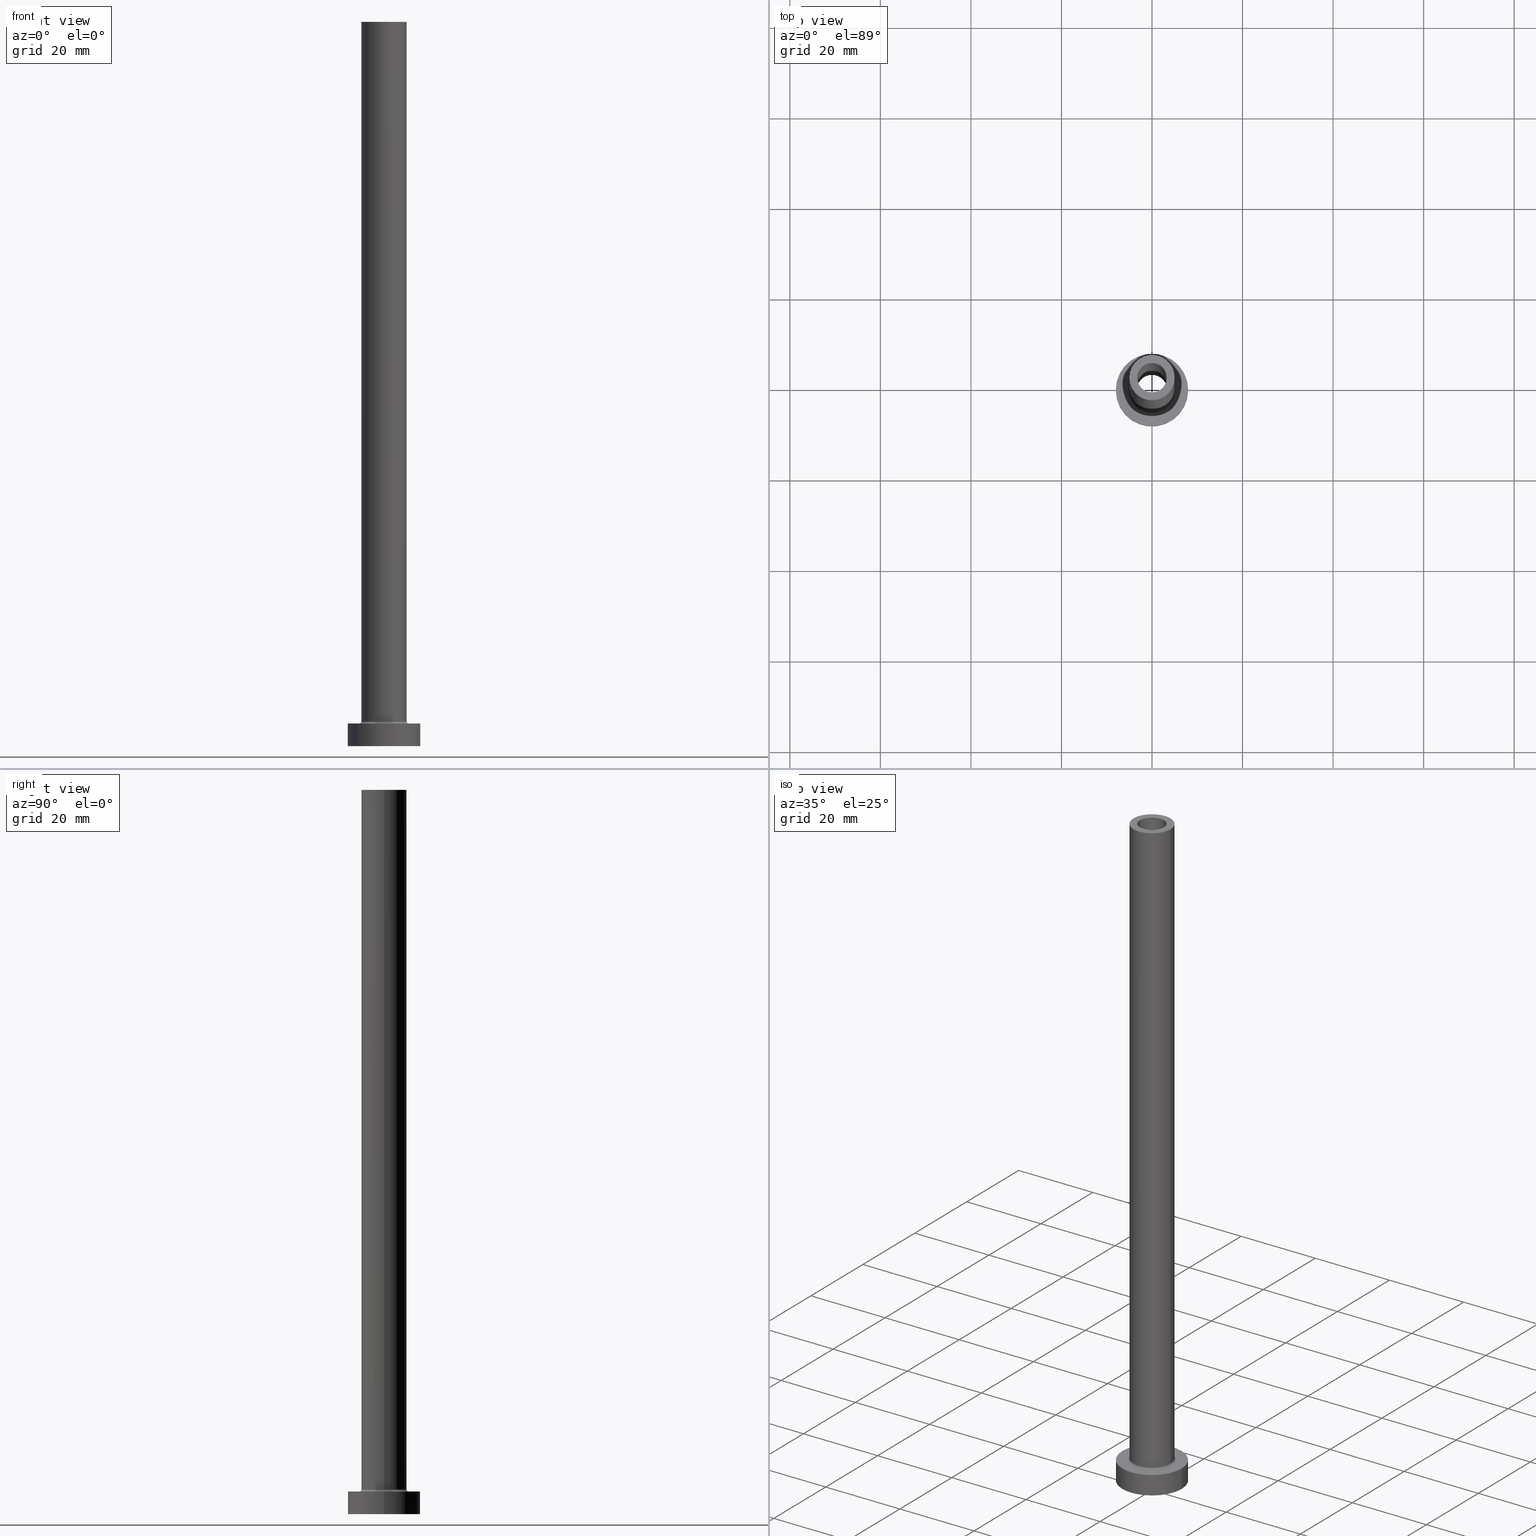
[diagram: canonical four-view strip — front | top / right | iso, engineering-drawing reading convention]
A machine part, canonical four-view strip (front | top / right | iso — engineering-drawing reading convention). The complete STEP part file that produces these views, byte-faithful:
ISO-10303-21;
HEADER;
FILE_DESCRIPTION (( 'STEP AP203' ),
    '1' );
FILE_NAME ('01ca.STEP',
    '2023-02-13T14:03:05',
    ( '' ),
    ( '' ),
    'SwSTEP 2.0',
    'SolidWorks 2019',
    '' );
FILE_SCHEMA (( 'CONFIG_CONTROL_DESIGN' ));
ENDSEC;

DATA;
#1 = DIRECTION ( 'NONE',  ( -1.000000000000000000, 1.224646799147351482E-16, 0.000000000000000000 ) ) ;
#2 = AXIS2_PLACEMENT_3D ( 'NONE', #395, #119, #159 ) ;
#3 = VERTEX_POINT ( 'NONE', #354 ) ;
#4 = AXIS2_PLACEMENT_3D ( 'NONE', #204, #128, #27 ) ;
#5 = DATE_AND_TIME ( #83, #34 ) ;
#6 = DIRECTION ( 'NONE',  ( 1.000000000000000000, 0.000000000000000000, 0.000000000000000000 ) ) ;
#7 = VERTEX_POINT ( 'NONE', #459 ) ;
#8 = APPLICATION_PROTOCOL_DEFINITION ( 'international standard', 'config_control_design', 1994, #90 ) ;
#9 = EDGE_CURVE ( 'NONE', #176, #288, #329, .T. ) ;
#10 = DIRECTION ( 'NONE',  ( 1.000000000000000000, 0.000000000000000000, 0.000000000000000000 ) ) ;
#11 = AXIS2_PLACEMENT_3D ( 'NONE', #433, #153, #290 ) ;
#12 = VERTEX_POINT ( 'NONE', #312 ) ;
#13 = TOROIDAL_SURFACE ( 'NONE', #274, 5.500000000000000000, 0.5000000000000000000 ) ;
#14 = LOCAL_TIME ( 15, 3, 5.000000000000000000, #440 ) ;
#15 = DIRECTION ( 'NONE',  ( -1.000000000000000000, 0.000000000000000000, 0.000000000000000000 ) ) ;
#16 = PERSON_AND_ORGANIZATION ( #158, #131 ) ;
#17 = CC_DESIGN_PERSON_AND_ORGANIZATION_ASSIGNMENT ( #16, #161, ( #214 ) ) ;
#18 = ADVANCED_FACE ( 'NONE', ( #457 ), #276, .T. ) ;
#19 = DIRECTION ( 'NONE',  ( -1.000000000000000000, 0.000000000000000000, 0.000000000000000000 ) ) ;
#20 = ORIENTED_EDGE ( 'NONE', *, *, #97, .T. ) ;
#21 = FACE_OUTER_BOUND ( 'NONE', #318, .T. ) ;
#22 = EDGE_LOOP ( 'NONE', ( #237, #115, #198, #172 ) ) ;
#23 = DIRECTION ( 'NONE',  ( 1.000000000000000000, 0.000000000000000000, 0.000000000000000000 ) ) ;
#24 = AXIS2_PLACEMENT_3D ( 'NONE', #68, #437, #23 ) ;
#25 = ORIENTED_EDGE ( 'NONE', *, *, #136, .T. ) ;
#26 = PRODUCT_DEFINITION ( 'NEZN�M�', '', #399, #242 ) ;
#27 = DIRECTION ( 'NONE',  ( 1.000000000000000000, 0.000000000000000000, 0.000000000000000000 ) ) ;
#28 = ORIENTED_EDGE ( 'NONE', *, *, #401, .T. ) ;
#29 = EDGE_LOOP ( 'NONE', ( #178, #28 ) ) ;
#30 = VECTOR ( 'NONE', #336, 1000.000000000000000 ) ;
#31 = DIRECTION ( 'NONE',  ( 0.000000000000000000, 0.000000000000000000, -1.000000000000000000 ) ) ;
#32 = ORIENTED_EDGE ( 'NONE', *, *, #309, .T. ) ;
#33 = CIRCLE ( 'NONE', #283, 5.500000000000000000 ) ;
#34 = LOCAL_TIME ( 15, 3, 5.000000000000000000, #388 ) ;
#35 = DIRECTION ( 'NONE',  ( 1.000000000000000000, 0.000000000000000000, 0.000000000000000000 ) ) ;
#36 = ORIENTED_EDGE ( 'NONE', *, *, #9, .T. ) ;
#37 = LINE ( 'NONE', #141, #155 ) ;
#38 = EDGE_CURVE ( 'NONE', #428, #327, #366, .T. ) ;
#39 = DIRECTION ( 'NONE',  ( 0.000000000000000000, 0.000000000000000000, -1.000000000000000000 ) ) ;
#40 = CC_DESIGN_PERSON_AND_ORGANIZATION_ASSIGNMENT ( #122, #88, ( #26 ) ) ;
#41 = ADVANCED_FACE ( 'NONE', ( #117 ), #362, .T. ) ;
#42 = CIRCLE ( 'NONE', #85, 3.399999999999999911 ) ;
#43 = DIRECTION ( 'NONE',  ( 1.224646799147353207E-16, 1.000000000000000000, -0.000000000000000000 ) ) ;
#44 = EDGE_CURVE ( 'NONE', #3, #243, #224, .T. ) ;
#45 = DIRECTION ( 'NONE',  ( 0.000000000000000000, 0.000000000000000000, 1.000000000000000000 ) ) ;
#46 = ORIENTED_EDGE ( 'NONE', *, *, #72, .F. ) ;
#47 = CARTESIAN_POINT ( 'NONE',  ( 0.000000000000000000, 0.000000000000000000, 115.0000000000000000 ) ) ;
#48 = VECTOR ( 'NONE', #350, 1000.000000000000000 ) ;
#49 = CYLINDRICAL_SURFACE ( 'NONE', #235, 8.000000000000000000 ) ;
#50 = DIRECTION ( 'NONE',  ( 1.000000000000000000, 0.000000000000000000, 0.000000000000000000 ) ) ;
#51 = ORIENTED_EDGE ( 'NONE', *, *, #387, .F. ) ;
#52 = CARTESIAN_POINT ( 'NONE',  ( 5.000000000000000000, 6.123233995736766282E-16, 160.0000000000000000 ) ) ;
#53 = EDGE_LOOP ( 'NONE', ( #223, #87, #453, #376 ) ) ;
#54 = CALENDAR_DATE ( 2023, 13, 2 ) ;
#55 = DIRECTION ( 'NONE',  ( -1.000000000000000000, 0.000000000000000000, 0.000000000000000000 ) ) ;
#56 = VERTEX_POINT ( 'NONE', #222 ) ;
#57 = CC_DESIGN_PERSON_AND_ORGANIZATION_ASSIGNMENT ( #297, #447, ( #399 ) ) ;
#58 =( GEOMETRIC_REPRESENTATION_CONTEXT ( 3 ) GLOBAL_UNCERTAINTY_ASSIGNED_CONTEXT ( ( #420 ) ) GLOBAL_UNIT_ASSIGNED_CONTEXT ( ( #282, #429, #191 ) ) REPRESENTATION_CONTEXT ( 'NONE', 'WORKASPACE' ) );
#59 = CALENDAR_DATE ( 2023, 13, 2 ) ;
#60 = DIRECTION ( 'NONE',  ( 0.000000000000000000, 0.000000000000000000, -1.000000000000000000 ) ) ;
#61 = CARTESIAN_POINT ( 'NONE',  ( 0.000000000000000000, 0.000000000000000000, 5.000000000000000000 ) ) ;
#62 = PERSON_AND_ORGANIZATION ( #158, #131 ) ;
#63 = CYLINDRICAL_SURFACE ( 'NONE', #307, 3.399999999999999911 ) ;
#64 = DIRECTION ( 'NONE',  ( 1.000000000000000000, 0.000000000000000000, -0.000000000000000000 ) ) ;
#65 = VECTOR ( 'NONE', #221, 1000.000000000000000 ) ;
#66 = ORIENTED_EDGE ( 'NONE', *, *, #280, .F. ) ;
#67 = APPROVAL_DATE_TIME ( #5, #194 ) ;
#68 = CARTESIAN_POINT ( 'NONE',  ( 0.000000000000000000, 0.000000000000000000, 5.500000000000005329 ) ) ;
#69 = ORIENTED_EDGE ( 'NONE', *, *, #292, .F. ) ;
#70 = CARTESIAN_POINT ( 'NONE',  ( -3.250000000000000444, 0.000000000000000000, 160.0000000000000000 ) ) ;
#71 = CIRCLE ( 'NONE', #4, 3.399999999999999911 ) ;
#72 = EDGE_CURVE ( 'NONE', #7, #56, #333, .T. ) ;
#73 = EDGE_LOOP ( 'NONE', ( #337, #246, #163, #400 ) ) ;
#74 = CYLINDRICAL_SURFACE ( 'NONE', #108, 3.399999999999999911 ) ;
#75 = EDGE_CURVE ( 'NONE', #371, #348, #346, .T. ) ;
#76 = ORIENTED_EDGE ( 'NONE', *, *, #103, .F. ) ;
#77 = AXIS2_PLACEMENT_3D ( 'NONE', #192, #252, #389 ) ;
#78 = DIRECTION ( 'NONE',  ( 0.000000000000000000, 0.000000000000000000, 1.000000000000000000 ) ) ;
#79 = ORIENTED_EDGE ( 'NONE', *, *, #251, .F. ) ;
#80 = AXIS2_PLACEMENT_3D ( 'NONE', #328, #45, #91 ) ;
#81 = CARTESIAN_POINT ( 'NONE',  ( -5.000000000000000000, 0.000000000000000000, 160.0000000000000000 ) ) ;
#82 = ORIENTED_EDGE ( 'NONE', *, *, #292, .T. ) ;
#83 = CALENDAR_DATE ( 2023, 13, 2 ) ;
#84 = DIRECTION ( 'NONE',  ( 0.000000000000000000, 0.000000000000000000, 1.000000000000000000 ) ) ;
#85 = AXIS2_PLACEMENT_3D ( 'NONE', #441, #99, #445 ) ;
#86 = DIRECTION ( 'NONE',  ( -1.000000000000000000, 0.000000000000000000, 0.000000000000000000 ) ) ;
#87 = ORIENTED_EDGE ( 'NONE', *, *, #277, .F. ) ;
#88 = PERSON_AND_ORGANIZATION_ROLE ( 'creator' ) ;
#89 = ORIENTED_EDGE ( 'NONE', *, *, #215, .F. ) ;
#90 = APPLICATION_CONTEXT ( 'configuration controlled 3d designs of mechanical parts and assemblies' ) ;
#91 = DIRECTION ( 'NONE',  ( 1.000000000000000000, 0.000000000000000000, 0.000000000000000000 ) ) ;
#92 = CARTESIAN_POINT ( 'NONE',  ( 0.000000000000000000, 0.000000000000000000, 160.0000000000000000 ) ) ;
#93 = VECTOR ( 'NONE', #31, 1000.000000000000000 ) ;
#94 = EDGE_LOOP ( 'NONE', ( #208, #36 ) ) ;
#95 = DATE_AND_TIME ( #59, #156 ) ;
#96 = PLANE ( 'NONE',  #323 ) ;
#97 = EDGE_CURVE ( 'NONE', #320, #357, #450, .T. ) ;
#98 = CARTESIAN_POINT ( 'NONE',  ( 5.000000000000000000, 6.123233995736766282E-16, 5.500000000000005329 ) ) ;
#99 = DIRECTION ( 'NONE',  ( 0.000000000000000000, 0.000000000000000000, 1.000000000000000000 ) ) ;
#100 = CC_DESIGN_APPROVAL ( #308, ( #214 ) ) ;
#101 = ORIENTED_EDGE ( 'NONE', *, *, #233, .T. ) ;
#102 = CC_DESIGN_PERSON_AND_ORGANIZATION_ASSIGNMENT ( #165, #335, ( #399 ) ) ;
#103 = EDGE_CURVE ( 'NONE', #327, #428, #261, .T. ) ;
#104 = DIRECTION ( 'NONE',  ( 1.000000000000000000, 0.000000000000000000, 0.000000000000000000 ) ) ;
#105 = ORIENTED_EDGE ( 'NONE', *, *, #218, .T. ) ;
#106 = DIRECTION ( 'NONE',  ( 0.000000000000000000, 0.000000000000000000, 1.000000000000000000 ) ) ;
#107 = ORIENTED_EDGE ( 'NONE', *, *, #345, .F. ) ;
#108 = AXIS2_PLACEMENT_3D ( 'NONE', #173, #135, #272 ) ;
#109 = EDGE_CURVE ( 'NONE', #7, #12, #438, .T. ) ;
#110 = CARTESIAN_POINT ( 'NONE',  ( 0.000000000000000000, 0.000000000000000000, 0.000000000000000000 ) ) ;
#111 = ADVANCED_FACE ( 'NONE', ( #435 ), #190, .F. ) ;
#112 = CARTESIAN_POINT ( 'NONE',  ( 0.000000000000000000, 0.000000000000000000, 160.0000000000000000 ) ) ;
#113 = APPLICATION_CONTEXT ( 'configuration controlled 3d designs of mechanical parts and assemblies' ) ;
#114 = PLANE ( 'NONE',  #120 ) ;
#115 = ORIENTED_EDGE ( 'NONE', *, *, #280, .T. ) ;
#116 = LOCAL_TIME ( 15, 3, 5.000000000000000000, #121 ) ;
#117 = FACE_OUTER_BOUND ( 'NONE', #53, .T. ) ;
#118 = DIRECTION ( 'NONE',  ( 0.000000000000000000, 0.000000000000000000, 1.000000000000000000 ) ) ;
#119 = DIRECTION ( 'NONE',  ( -0.000000000000000000, -0.000000000000000000, -1.000000000000000000 ) ) ;
#120 = AXIS2_PLACEMENT_3D ( 'NONE', #171, #106, #247 ) ;
#121 = COORDINATED_UNIVERSAL_TIME_OFFSET ( 1, 0, .AHEAD. ) ;
#122 = PERSON_AND_ORGANIZATION ( #158, #131 ) ;
#123 = MANIFOLD_SOLID_BREP ( 'Odebrat vysunut�m4', #338 ) ;
#124 = FACE_OUTER_BOUND ( 'NONE', #352, .T. ) ;
#125 = CIRCLE ( 'NONE', #361, 3.250000000000000444 ) ;
#126 = CALENDAR_DATE ( 2023, 13, 2 ) ;
#127 = DIRECTION ( 'NONE',  ( 1.000000000000000000, 0.000000000000000000, -0.000000000000000000 ) ) ;
#128 = DIRECTION ( 'NONE',  ( -0.000000000000000000, -0.000000000000000000, -1.000000000000000000 ) ) ;
#129 = CARTESIAN_POINT ( 'NONE',  ( 0.000000000000000000, 0.000000000000000000, 0.000000000000000000 ) ) ;
#130 = AXIS2_PLACEMENT_3D ( 'NONE', #254, #326, #258 ) ;
#131 = ORGANIZATION ( 'NEUR�EN�', 'NEUR�EN�', '' ) ;
#132 = ORIENTED_EDGE ( 'NONE', *, *, #345, .T. ) ;
#133 = CYLINDRICAL_SURFACE ( 'NONE', #300, 3.250000000000000444 ) ;
#134 = EDGE_LOOP ( 'NONE', ( #304, #51 ) ) ;
#135 = DIRECTION ( 'NONE',  ( 0.000000000000000000, 0.000000000000000000, -1.000000000000000000 ) ) ;
#136 = EDGE_CURVE ( 'NONE', #12, #7, #250, .T. ) ;
#137 = FACE_OUTER_BOUND ( 'NONE', #414, .T. ) ;
#138 = CARTESIAN_POINT ( 'NONE',  ( 0.000000000000000000, 0.000000000000000000, 160.0000000000000000 ) ) ;
#139 = VECTOR ( 'NONE', #315, 1000.000000000000000 ) ;
#140 = CC_DESIGN_SECURITY_CLASSIFICATION ( #214, ( #399 ) ) ;
#141 = CARTESIAN_POINT ( 'NONE',  ( 8.000000000000000000, 9.797174393178825657E-16, 5.000000000000000000 ) ) ;
#142 = CARTESIAN_POINT ( 'NONE',  ( -3.250000000000000444, 0.000000000000000000, 115.0000000000000000 ) ) ;
#143 = ORIENTED_EDGE ( 'NONE', *, *, #401, .F. ) ;
#144 = CARTESIAN_POINT ( 'NONE',  ( 3.250000000000000444, 3.980102097228897245E-16, 115.0000000000000000 ) ) ;
#145 = ORIENTED_EDGE ( 'NONE', *, *, #109, .T. ) ;
#146 = LOCAL_TIME ( 15, 3, 5.000000000000000000, #364 ) ;
#147 = ORIENTED_EDGE ( 'NONE', *, *, #136, .F. ) ;
#148 = EDGE_LOOP ( 'NONE', ( #160, #101, #76, #201 ) ) ;
#149 = PRODUCT_RELATED_PRODUCT_CATEGORY ( 'detail', '', ( #279 ) ) ;
#150 = EDGE_CURVE ( 'NONE', #3, #320, #301, .T. ) ;
#151 = AXIS2_PLACEMENT_3D ( 'NONE', #138, #378, #174 ) ;
#152 = PERSON_AND_ORGANIZATION_ROLE ( 'design_owner' ) ;
#153 = DIRECTION ( 'NONE',  ( 0.000000000000000000, 0.000000000000000000, 1.000000000000000000 ) ) ;
#154 = ORIENTED_EDGE ( 'NONE', *, *, #183, .T. ) ;
#155 = VECTOR ( 'NONE', #207, 1000.000000000000000 ) ;
#156 = LOCAL_TIME ( 15, 3, 5.000000000000000000, #268 ) ;
#157 = DATE_AND_TIME ( #54, #146 ) ;
#158 = PERSON ( 'NEUR�EN�', 'NEUR�EN�', 'NEUR�EN�', ('NEUR�EN�'), ('NEUR�EN�'), ('NEUR�EN�') ) ;
#159 = DIRECTION ( 'NONE',  ( 1.000000000000000000, 0.000000000000000000, 0.000000000000000000 ) ) ;
#160 = ORIENTED_EDGE ( 'NONE', *, *, #251, .T. ) ;
#161 = PERSON_AND_ORGANIZATION_ROLE ( 'classification_officer' ) ;
#162 = LINE ( 'NONE', #347, #93 ) ;
#163 = ORIENTED_EDGE ( 'NONE', *, *, #75, .F. ) ;
#164 = AXIS2_PLACEMENT_3D ( 'NONE', #110, #249, #381 ) ;
#165 = PERSON_AND_ORGANIZATION ( #158, #131 ) ;
#166 = DIRECTION ( 'NONE',  ( -0.000000000000000000, -0.000000000000000000, -1.000000000000000000 ) ) ;
#167 = CARTESIAN_POINT ( 'NONE',  ( 0.000000000000000000, 0.000000000000000000, 160.0000000000000000 ) ) ;
#168 = ADVANCED_FACE ( 'NONE', ( #370 ), #63, .F. ) ;
#169 = FACE_BOUND ( 'NONE', #29, .T. ) ;
#170 = VERTEX_POINT ( 'NONE', #98 ) ;
#171 = CARTESIAN_POINT ( 'NONE',  ( 0.000000000000000000, 0.000000000000000000, 0.000000000000000000 ) ) ;
#172 = ORIENTED_EDGE ( 'NONE', *, *, #38, .F. ) ;
#173 = CARTESIAN_POINT ( 'NONE',  ( 0.000000000000000000, 0.000000000000000000, 124.6166522241370558 ) ) ;
#174 = DIRECTION ( 'NONE',  ( 1.000000000000000000, 0.000000000000000000, 0.000000000000000000 ) ) ;
#175 = CARTESIAN_POINT ( 'NONE',  ( -5.000000000000000000, 0.000000000000000000, 5.500000000000005329 ) ) ;
#176 = VERTEX_POINT ( 'NONE', #269 ) ;
#177 = CARTESIAN_POINT ( 'NONE',  ( 5.500000000000000000, 0.000000000000000000, 5.500000000000005329 ) ) ;
#178 = ORIENTED_EDGE ( 'NONE', *, *, #75, .T. ) ;
#179 = AXIS2_PLACEMENT_3D ( 'NONE', #112, #270, #35 ) ;
#180 = CARTESIAN_POINT ( 'NONE',  ( -3.399999999999999911, 0.000000000000000000, 0.000000000000000000 ) ) ;
#181 = ORIENTED_EDGE ( 'NONE', *, *, #44, .T. ) ;
#182 = APPROVAL ( #253, 'NEUR�EN�' ) ;
#183 = EDGE_CURVE ( 'NONE', #170, #369, #220, .T. ) ;
#184 = DATE_AND_TIME ( #259, #116 ) ;
#185 = EDGE_LOOP ( 'NONE', ( #231, #284 ) ) ;
#186 = CARTESIAN_POINT ( 'NONE',  ( 0.000000000000000000, 0.000000000000000000, 5.000000000000000000 ) ) ;
#187 = CIRCLE ( 'NONE', #442, 0.5000000000000004441 ) ;
#188 = CARTESIAN_POINT ( 'NONE',  ( 0.000000000000000000, 0.000000000000000000, 5.500000000000005329 ) ) ;
#189 = ADVANCED_FACE ( 'NONE', ( #21 ), #266, .T. ) ;
#190 = CYLINDRICAL_SURFACE ( 'NONE', #267, 3.250000000000000444 ) ;
#191 =( NAMED_UNIT ( * ) SI_UNIT ( $, .STERADIAN. ) SOLID_ANGLE_UNIT ( ) );
#192 = CARTESIAN_POINT ( 'NONE',  ( 0.000000000000000000, 0.000000000000000000, 115.0000000000000000 ) ) ;
#193 = APPROVAL_PERSON_ORGANIZATION ( #425, #182, #432 ) ;
#194 = APPROVAL ( #319, 'NEUR�EN�' ) ;
#195 = DIRECTION ( 'NONE',  ( 0.000000000000000000, 0.000000000000000000, 1.000000000000000000 ) ) ;
#196 = ORIENTED_EDGE ( 'NONE', *, *, #9, .F. ) ;
#197 = DIRECTION ( 'NONE',  ( -1.000000000000000000, 0.000000000000000000, 0.000000000000000000 ) ) ;
#198 = ORIENTED_EDGE ( 'NONE', *, *, #410, .T. ) ;
#199 = CIRCLE ( 'NONE', #164, 8.000000000000000000 ) ;
#200 = CARTESIAN_POINT ( 'NONE',  ( 0.000000000000000000, 0.000000000000000000, 160.0000000000000000 ) ) ;
#201 = ORIENTED_EDGE ( 'NONE', *, *, #410, .F. ) ;
#202 = CC_DESIGN_DATE_AND_TIME_ASSIGNMENT ( #95, #294, ( #214 ) ) ;
#203 = SECURITY_CLASSIFICATION_LEVEL ( 'unclassified' ) ;
#204 = CARTESIAN_POINT ( 'NONE',  ( 0.000000000000000000, 0.000000000000000000, 0.000000000000000000 ) ) ;
#205 = AXIS2_PLACEMENT_3D ( 'NONE', #416, #78, #211 ) ;
#206 = FACE_OUTER_BOUND ( 'NONE', #73, .T. ) ;
#207 = DIRECTION ( 'NONE',  ( -0.000000000000000000, -0.000000000000000000, -1.000000000000000000 ) ) ;
#208 = ORIENTED_EDGE ( 'NONE', *, *, #277, .T. ) ;
#209 = CARTESIAN_POINT ( 'NONE',  ( 0.000000000000000000, 0.000000000000000000, 5.000000000000000000 ) ) ;
#210 = CARTESIAN_POINT ( 'NONE',  ( 0.000000000000000000, 0.000000000000000000, 5.000000000000000000 ) ) ;
#211 = DIRECTION ( 'NONE',  ( 1.000000000000000000, 0.000000000000000000, 0.000000000000000000 ) ) ;
#212 = PRODUCT_DEFINITION_SHAPE ( 'NONE', 'NONE',  #26 ) ;
#213 = EDGE_LOOP ( 'NONE', ( #107, #444, #296, #20 ) ) ;
#214 = SECURITY_CLASSIFICATION ( '', '', #203 ) ;
#215 = EDGE_CURVE ( 'NONE', #243, #3, #42, .T. ) ;
#216 = LINE ( 'NONE', #458, #393 ) ;
#217 = APPROVAL_ROLE ( '' ) ;
#218 = EDGE_CURVE ( 'NONE', #357, #320, #71, .T. ) ;
#219 = DIRECTION ( 'NONE',  ( 0.000000000000000000, 0.000000000000000000, 1.000000000000000000 ) ) ;
#220 = CIRCLE ( 'NONE', #24, 5.000000000000000000 ) ;
#221 = DIRECTION ( 'NONE',  ( -0.000000000000000000, -0.000000000000000000, -1.000000000000000000 ) ) ;
#222 = CARTESIAN_POINT ( 'NONE',  ( -8.000000000000000000, 0.000000000000000000, 0.000000000000000000 ) ) ;
#223 = ORIENTED_EDGE ( 'NONE', *, *, #446, .F. ) ;
#224 = CIRCLE ( 'NONE', #77, 3.399999999999999911 ) ;
#225 = DIRECTION ( 'NONE',  ( 1.000000000000000000, 0.000000000000000000, 0.000000000000000000 ) ) ;
#226 = DIRECTION ( 'NONE',  ( 1.000000000000000000, 0.000000000000000000, 0.000000000000000000 ) ) ;
#227 = AXIS2_PLACEMENT_3D ( 'NONE', #186, #324, #6 ) ;
#228 = ADVANCED_FACE ( 'NONE', ( #169, #375 ), #236, .T. ) ;
#229 = SHAPE_DEFINITION_REPRESENTATION ( #212, #398 ) ;
#230 = DIRECTION ( 'NONE',  ( -1.000000000000000000, 0.000000000000000000, 0.000000000000000000 ) ) ;
#231 = ORIENTED_EDGE ( 'NONE', *, *, #103, .T. ) ;
#232 = DIRECTION ( 'NONE',  ( 0.000000000000000000, 0.000000000000000000, -1.000000000000000000 ) ) ;
#233 = EDGE_CURVE ( 'NONE', #436, #428, #162, .T. ) ;
#234 = DIRECTION ( 'NONE',  ( 0.000000000000000000, 0.000000000000000000, 1.000000000000000000 ) ) ;
#235 = AXIS2_PLACEMENT_3D ( 'NONE', #286, #426, #86 ) ;
#236 = PLANE ( 'NONE',  #355 ) ;
#237 = ORIENTED_EDGE ( 'NONE', *, *, #233, .F. ) ;
#238 = DIRECTION ( 'NONE',  ( 0.000000000000000000, 0.000000000000000000, 1.000000000000000000 ) ) ;
#239 = AXIS2_PLACEMENT_3D ( 'NONE', #293, #219, #50 ) ;
#240 = VERTEX_POINT ( 'NONE', #404 ) ;
#241 = CARTESIAN_POINT ( 'NONE',  ( 5.500000000000000000, 0.000000000000000000, 5.000000000000002665 ) ) ;
#242 = DESIGN_CONTEXT ( 'detailed design', #113, 'design' ) ;
#243 = VERTEX_POINT ( 'NONE', #374 ) ;
#244 = ADVANCED_FACE ( 'NONE', ( #295, #124 ), #262, .F. ) ;
#245 = CARTESIAN_POINT ( 'NONE',  ( -5.500000000000000000, 6.735557395310442023E-16, 5.000000000000002665 ) ) ;
#246 = ORIENTED_EDGE ( 'NONE', *, *, #314, .T. ) ;
#247 = DIRECTION ( 'NONE',  ( 1.000000000000000000, 0.000000000000000000, -0.000000000000000000 ) ) ;
#248 = ADVANCED_FACE ( 'NONE', ( #265, #402 ), #96, .T. ) ;
#249 = DIRECTION ( 'NONE',  ( 0.000000000000000000, 0.000000000000000000, 1.000000000000000000 ) ) ;
#250 = CIRCLE ( 'NONE', #227, 8.000000000000000000 ) ;
#251 = EDGE_CURVE ( 'NONE', #359, #436, #125, .T. ) ;
#252 = DIRECTION ( 'NONE',  ( 0.000000000000000000, 0.000000000000000000, 1.000000000000000000 ) ) ;
#253 = APPROVAL_STATUS ( 'not_yet_approved' ) ;
#254 = CARTESIAN_POINT ( 'NONE',  ( 0.000000000000000000, 0.000000000000000000, 5.000000000000000000 ) ) ;
#255 = AXIS2_PLACEMENT_3D ( 'NONE', #298, #166, #230 ) ;
#256 = EDGE_CURVE ( 'NONE', #56, #240, #379, .T. ) ;
#257 = APPROVAL_DATE_TIME ( #184, #182 ) ;
#258 = DIRECTION ( 'NONE',  ( 1.000000000000000000, 0.000000000000000000, 0.000000000000000000 ) ) ;
#259 = CALENDAR_DATE ( 2023, 13, 2 ) ;
#260 = ORIENTED_EDGE ( 'NONE', *, *, #44, .F. ) ;
#261 = CIRCLE ( 'NONE', #321, 3.250000000000000444 ) ;
#262 = PLANE ( 'NONE',  #368 ) ;
#263 = ORIENTED_EDGE ( 'NONE', *, *, #109, .F. ) ;
#264 = DATE_AND_TIME ( #126, #14 ) ;
#265 = FACE_BOUND ( 'NONE', #394, .T. ) ;
#266 = CYLINDRICAL_SURFACE ( 'NONE', #255, 5.000000000000000000 ) ;
#267 = AXIS2_PLACEMENT_3D ( 'NONE', #92, #60, #19 ) ;
#268 = COORDINATED_UNIVERSAL_TIME_OFFSET ( 1, 0, .AHEAD. ) ;
#269 = CARTESIAN_POINT ( 'NONE',  ( 5.000000000000000000, 6.123233995736766282E-16, 160.0000000000000000 ) ) ;
#270 = DIRECTION ( 'NONE',  ( 0.000000000000000000, 0.000000000000000000, 1.000000000000000000 ) ) ;
#271 = ORIENTED_EDGE ( 'NONE', *, *, #256, .T. ) ;
#272 = DIRECTION ( 'NONE',  ( -1.000000000000000000, 0.000000000000000000, 0.000000000000000000 ) ) ;
#273 = ORIENTED_EDGE ( 'NONE', *, *, #183, .F. ) ;
#274 = AXIS2_PLACEMENT_3D ( 'NONE', #455, #317, #382 ) ;
#275 = CARTESIAN_POINT ( 'NONE',  ( 0.000000000000000000, 0.000000000000000000, 5.500000000000005329 ) ) ;
#276 = CYLINDRICAL_SURFACE ( 'NONE', #405, 8.000000000000000000 ) ;
#277 = EDGE_CURVE ( 'NONE', #288, #176, #349, .T. ) ;
#278 = FACE_BOUND ( 'NONE', #407, .T. ) ;
#279 = PRODUCT ( '01ca', '01ca', '', ( #287 ) ) ;
#280 = EDGE_CURVE ( 'NONE', #436, #359, #373, .T. ) ;
#281 = LINE ( 'NONE', #421, #139 ) ;
#282 =( LENGTH_UNIT ( ) NAMED_UNIT ( * ) SI_UNIT ( .MILLI., .METRE. ) );
#283 = AXIS2_PLACEMENT_3D ( 'NONE', #209, #411, #104 ) ;
#284 = ORIENTED_EDGE ( 'NONE', *, *, #38, .T. ) ;
#285 = APPROVAL_PERSON_ORGANIZATION ( #396, #194, #217 ) ;
#286 = CARTESIAN_POINT ( 'NONE',  ( 0.000000000000000000, 0.000000000000000000, 5.000000000000000000 ) ) ;
#287 = MECHANICAL_CONTEXT ( 'NONE', #90, 'mechanical' ) ;
#288 = VERTEX_POINT ( 'NONE', #81 ) ;
#289 = LINE ( 'NONE', #52, #65 ) ;
#290 = DIRECTION ( 'NONE',  ( 1.000000000000000000, 0.000000000000000000, 0.000000000000000000 ) ) ;
#291 = CARTESIAN_POINT ( 'NONE',  ( 3.250000000000000444, 3.980102097228897245E-16, 160.0000000000000000 ) ) ;
#292 = EDGE_CURVE ( 'NONE', #12, #240, #37, .T. ) ;
#293 = CARTESIAN_POINT ( 'NONE',  ( 0.000000000000000000, 0.000000000000000000, 5.000000000000000000 ) ) ;
#294 = DATE_TIME_ROLE ( 'classification_date' ) ;
#295 = FACE_BOUND ( 'NONE', #185, .T. ) ;
#296 = ORIENTED_EDGE ( 'NONE', *, *, #150, .T. ) ;
#297 = PERSON_AND_ORGANIZATION ( #158, #131 ) ;
#298 = CARTESIAN_POINT ( 'NONE',  ( 0.000000000000000000, 0.000000000000000000, 160.0000000000000000 ) ) ;
#299 = ORIENTED_EDGE ( 'NONE', *, *, #150, .F. ) ;
#300 = AXIS2_PLACEMENT_3D ( 'NONE', #385, #311, #310 ) ;
#301 = LINE ( 'NONE', #406, #408 ) ;
#302 = CC_DESIGN_PERSON_AND_ORGANIZATION_ASSIGNMENT ( #392, #152, ( #279 ) ) ;
#303 = DIRECTION ( 'NONE',  ( 0.000000000000000000, 0.000000000000000000, 1.000000000000000000 ) ) ;
#304 = ORIENTED_EDGE ( 'NONE', *, *, #256, .F. ) ;
#305 = APPROVAL_STATUS ( 'not_yet_approved' ) ;
#306 = DIRECTION ( 'NONE',  ( 1.000000000000000000, 0.000000000000000000, -0.000000000000000000 ) ) ;
#307 = AXIS2_PLACEMENT_3D ( 'NONE', #344, #340, #197 ) ;
#308 = APPROVAL ( #305, 'NEUR�EN�' ) ;
#309 = EDGE_CURVE ( 'NONE', #170, #371, #334, .T. ) ;
#310 = DIRECTION ( 'NONE',  ( -1.000000000000000000, 0.000000000000000000, 0.000000000000000000 ) ) ;
#311 = DIRECTION ( 'NONE',  ( 0.000000000000000000, 0.000000000000000000, -1.000000000000000000 ) ) ;
#312 = CARTESIAN_POINT ( 'NONE',  ( 8.000000000000000000, 9.797174393178825657E-16, 5.000000000000000000 ) ) ;
#313 = DIRECTION ( 'NONE',  ( -0.000000000000000000, -0.000000000000000000, -1.000000000000000000 ) ) ;
#314 = EDGE_CURVE ( 'NONE', #369, #348, #187, .T. ) ;
#315 = DIRECTION ( 'NONE',  ( 0.000000000000000000, 0.000000000000000000, -1.000000000000000000 ) ) ;
#316 = ORIENTED_EDGE ( 'NONE', *, *, #314, .F. ) ;
#317 = DIRECTION ( 'NONE',  ( 0.000000000000000000, 0.000000000000000000, 1.000000000000000000 ) ) ;
#318 = EDGE_LOOP ( 'NONE', ( #196, #330, #154, #449 ) ) ;
#319 = APPROVAL_STATUS ( 'not_yet_approved' ) ;
#320 = VERTEX_POINT ( 'NONE', #180 ) ;
#321 = AXIS2_PLACEMENT_3D ( 'NONE', #47, #397, #226 ) ;
#322 = DATE_TIME_ROLE ( 'creation_date' ) ;
#323 = AXIS2_PLACEMENT_3D ( 'NONE', #167, #234, #64 ) ;
#324 = DIRECTION ( 'NONE',  ( 0.000000000000000000, 0.000000000000000000, 1.000000000000000000 ) ) ;
#325 = FACE_OUTER_BOUND ( 'NONE', #431, .T. ) ;
#326 = DIRECTION ( 'NONE',  ( -0.000000000000000000, -0.000000000000000000, -1.000000000000000000 ) ) ;
#327 = VERTEX_POINT ( 'NONE', #142 ) ;
#328 = CARTESIAN_POINT ( 'NONE',  ( 0.000000000000000000, 0.000000000000000000, 0.000000000000000000 ) ) ;
#329 = CIRCLE ( 'NONE', #151, 5.000000000000000000 ) ;
#330 = ORIENTED_EDGE ( 'NONE', *, *, #446, .T. ) ;
#331 = AXIS2_PLACEMENT_3D ( 'NONE', #367, #427, #55 ) ;
#332 = ADVANCED_FACE ( 'NONE', ( #206 ), #13, .F. ) ;
#333 = LINE ( 'NONE', #430, #30 ) ;
#334 = CIRCLE ( 'NONE', #342, 0.5000000000000004441 ) ;
#335 = PERSON_AND_ORGANIZATION_ROLE ( 'creator' ) ;
#336 = DIRECTION ( 'NONE',  ( -0.000000000000000000, -0.000000000000000000, -1.000000000000000000 ) ) ;
#337 = ORIENTED_EDGE ( 'NONE', *, *, #423, .F. ) ;
#338 = CLOSED_SHELL ( 'NONE', ( #390, #418, #332, #189, #18, #451, #228, #363, #41, #248, #460, #168, #244, #111 ) ) ;
#339 = APPROVAL_ROLE ( '' ) ;
#340 = DIRECTION ( 'NONE',  ( 0.000000000000000000, 0.000000000000000000, -1.000000000000000000 ) ) ;
#341 = ORIENTED_EDGE ( 'NONE', *, *, #218, .F. ) ;
#342 = AXIS2_PLACEMENT_3D ( 'NONE', #177, #353, #39 ) ;
#343 = APPROVAL_PERSON_ORGANIZATION ( #62, #308, #339 ) ;
#344 = CARTESIAN_POINT ( 'NONE',  ( 0.000000000000000000, 0.000000000000000000, 124.6166522241370558 ) ) ;
#345 = EDGE_CURVE ( 'NONE', #243, #357, #281, .T. ) ;
#346 = CIRCLE ( 'NONE', #130, 5.500000000000000000 ) ;
#347 = CARTESIAN_POINT ( 'NONE',  ( 3.250000000000000444, 3.980102097228897245E-16, 160.0000000000000000 ) ) ;
#348 = VERTEX_POINT ( 'NONE', #245 ) ;
#349 = CIRCLE ( 'NONE', #205, 5.000000000000000000 ) ;
#350 = DIRECTION ( 'NONE',  ( 0.000000000000000000, 0.000000000000000000, -1.000000000000000000 ) ) ;
#351 = CARTESIAN_POINT ( 'NONE',  ( 3.399999999999999911, 4.163799117101000559E-16, 0.000000000000000000 ) ) ;
#352 = EDGE_LOOP ( 'NONE', ( #260, #89 ) ) ;
#353 = DIRECTION ( 'NONE',  ( 0.000000000000000000, -1.000000000000000000, 0.000000000000000000 ) ) ;
#354 = CARTESIAN_POINT ( 'NONE',  ( -3.399999999999999911, 0.000000000000000000, 115.0000000000000000 ) ) ;
#355 = AXIS2_PLACEMENT_3D ( 'NONE', #61, #452, #306 ) ;
#356 = CARTESIAN_POINT ( 'NONE',  ( -5.500000000000000000, 6.735557395310442023E-16, 5.500000000000005329 ) ) ;
#357 = VERTEX_POINT ( 'NONE', #351 ) ;
#358 = DIRECTION ( 'NONE',  ( 1.000000000000000000, 0.000000000000000000, 0.000000000000000000 ) ) ;
#359 = VERTEX_POINT ( 'NONE', #419 ) ;
#360 = ORIENTED_EDGE ( 'NONE', *, *, #97, .F. ) ;
#361 = AXIS2_PLACEMENT_3D ( 'NONE', #200, #303, #448 ) ;
#362 = CYLINDRICAL_SURFACE ( 'NONE', #331, 5.000000000000000000 ) ;
#363 = ADVANCED_FACE ( 'NONE', ( #278, #413 ), #114, .F. ) ;
#364 = COORDINATED_UNIVERSAL_TIME_OFFSET ( 1, 0, .AHEAD. ) ;
#365 = DIRECTION ( 'NONE',  ( -0.000000000000000000, -0.000000000000000000, -1.000000000000000000 ) ) ;
#366 = CIRCLE ( 'NONE', #11, 3.250000000000000444 ) ;
#367 = CARTESIAN_POINT ( 'NONE',  ( 0.000000000000000000, 0.000000000000000000, 160.0000000000000000 ) ) ;
#368 = AXIS2_PLACEMENT_3D ( 'NONE', #372, #195, #127 ) ;
#369 = VERTEX_POINT ( 'NONE', #175 ) ;
#370 = FACE_OUTER_BOUND ( 'NONE', #213, .T. ) ;
#371 = VERTEX_POINT ( 'NONE', #241 ) ;
#372 = CARTESIAN_POINT ( 'NONE',  ( 0.000000000000000000, 0.000000000000000000, 115.0000000000000000 ) ) ;
#373 = CIRCLE ( 'NONE', #179, 3.250000000000000444 ) ;
#374 = CARTESIAN_POINT ( 'NONE',  ( 3.399999999999999911, 4.163799117101000559E-16, 115.0000000000000000 ) ) ;
#375 = FACE_OUTER_BOUND ( 'NONE', #380, .T. ) ;
#376 = ORIENTED_EDGE ( 'NONE', *, *, #423, .T. ) ;
#377 = LINE ( 'NONE', #70, #48 ) ;
#378 = DIRECTION ( 'NONE',  ( 0.000000000000000000, 0.000000000000000000, 1.000000000000000000 ) ) ;
#379 = CIRCLE ( 'NONE', #384, 8.000000000000000000 ) ;
#380 = EDGE_LOOP ( 'NONE', ( #145, #25 ) ) ;
#381 = DIRECTION ( 'NONE',  ( 1.000000000000000000, 0.000000000000000000, 0.000000000000000000 ) ) ;
#382 = DIRECTION ( 'NONE',  ( 1.000000000000000000, 0.000000000000000000, 0.000000000000000000 ) ) ;
#383 = EDGE_CURVE ( 'NONE', #288, #369, #216, .T. ) ;
#384 = AXIS2_PLACEMENT_3D ( 'NONE', #129, #238, #358 ) ;
#385 = CARTESIAN_POINT ( 'NONE',  ( 0.000000000000000000, 0.000000000000000000, 160.0000000000000000 ) ) ;
#386 = EDGE_LOOP ( 'NONE', ( #69, #263, #412, #271 ) ) ;
#387 = EDGE_CURVE ( 'NONE', #240, #56, #199, .T. ) ;
#388 = COORDINATED_UNIVERSAL_TIME_OFFSET ( 1, 0, .AHEAD. ) ;
#389 = DIRECTION ( 'NONE',  ( 1.000000000000000000, 0.000000000000000000, 0.000000000000000000 ) ) ;
#390 = ADVANCED_FACE ( 'NONE', ( #456 ), #133, .F. ) ;
#391 = FACE_OUTER_BOUND ( 'NONE', #386, .T. ) ;
#392 = PERSON_AND_ORGANIZATION ( #158, #131 ) ;
#393 = VECTOR ( 'NONE', #313, 1000.000000000000000 ) ;
#394 = EDGE_LOOP ( 'NONE', ( #79, #66 ) ) ;
#395 = CARTESIAN_POINT ( 'NONE',  ( 0.000000000000000000, 0.000000000000000000, 0.000000000000000000 ) ) ;
#396 = PERSON_AND_ORGANIZATION ( #158, #131 ) ;
#397 = DIRECTION ( 'NONE',  ( 0.000000000000000000, 0.000000000000000000, 1.000000000000000000 ) ) ;
#398 = ADVANCED_BREP_SHAPE_REPRESENTATION ( '01ca', ( #123, #80 ), #58 ) ;
#399 = PRODUCT_DEFINITION_FORMATION_WITH_SPECIFIED_SOURCE ( 'LIBOVOLN�', '', #279, .NOT_KNOWN. ) ;
#400 = ORIENTED_EDGE ( 'NONE', *, *, #309, .F. ) ;
#401 = EDGE_CURVE ( 'NONE', #348, #371, #33, .T. ) ;
#402 = FACE_OUTER_BOUND ( 'NONE', #94, .T. ) ;
#403 = APPROVAL_DATE_TIME ( #264, #308 ) ;
#404 = CARTESIAN_POINT ( 'NONE',  ( 8.000000000000000000, 9.797174393178825657E-16, 0.000000000000000000 ) ) ;
#405 = AXIS2_PLACEMENT_3D ( 'NONE', #210, #365, #15 ) ;
#406 = CARTESIAN_POINT ( 'NONE',  ( -3.399999999999999911, 0.000000000000000000, 124.6166522241370558 ) ) ;
#407 = EDGE_LOOP ( 'NONE', ( #360, #341 ) ) ;
#408 = VECTOR ( 'NONE', #232, 1000.000000000000000 ) ;
#409 = TOROIDAL_SURFACE ( 'NONE', #454, 5.500000000000000000, 0.5000000000000000000 ) ;
#410 = EDGE_CURVE ( 'NONE', #359, #327, #377, .T. ) ;
#411 = DIRECTION ( 'NONE',  ( -0.000000000000000000, -0.000000000000000000, -1.000000000000000000 ) ) ;
#412 = ORIENTED_EDGE ( 'NONE', *, *, #72, .T. ) ;
#413 = FACE_OUTER_BOUND ( 'NONE', #134, .T. ) ;
#414 = EDGE_LOOP ( 'NONE', ( #181, #132, #105, #299 ) ) ;
#415 = CIRCLE ( 'NONE', #461, 5.000000000000000000 ) ;
#416 = CARTESIAN_POINT ( 'NONE',  ( 0.000000000000000000, 0.000000000000000000, 160.0000000000000000 ) ) ;
#417 = EDGE_LOOP ( 'NONE', ( #147, #82, #439, #46 ) ) ;
#418 = ADVANCED_FACE ( 'NONE', ( #137 ), #74, .F. ) ;
#419 = CARTESIAN_POINT ( 'NONE',  ( -3.250000000000000444, 0.000000000000000000, 160.0000000000000000 ) ) ;
#420 = UNCERTAINTY_MEASURE_WITH_UNIT (LENGTH_MEASURE( 1.000000000000000082E-05 ), #282, 'distance_accuracy_value', 'NONE');
#421 = CARTESIAN_POINT ( 'NONE',  ( 3.399999999999999911, 4.163799117101000559E-16, 124.6166522241370558 ) ) ;
#422 = CC_DESIGN_DATE_AND_TIME_ASSIGNMENT ( #157, #322, ( #26 ) ) ;
#423 = EDGE_CURVE ( 'NONE', #369, #170, #415, .T. ) ;
#424 = CC_DESIGN_APPROVAL ( #182, ( #26 ) ) ;
#425 = PERSON_AND_ORGANIZATION ( #158, #131 ) ;
#426 = DIRECTION ( 'NONE',  ( -0.000000000000000000, -0.000000000000000000, -1.000000000000000000 ) ) ;
#427 = DIRECTION ( 'NONE',  ( -0.000000000000000000, -0.000000000000000000, -1.000000000000000000 ) ) ;
#428 = VERTEX_POINT ( 'NONE', #144 ) ;
#429 =( NAMED_UNIT ( * ) PLANE_ANGLE_UNIT ( ) SI_UNIT ( $, .RADIAN. ) );
#430 = CARTESIAN_POINT ( 'NONE',  ( -8.000000000000000000, 0.000000000000000000, 5.000000000000000000 ) ) ;
#431 = EDGE_LOOP ( 'NONE', ( #316, #273, #32, #143 ) ) ;
#432 = APPROVAL_ROLE ( '' ) ;
#433 = CARTESIAN_POINT ( 'NONE',  ( 0.000000000000000000, 0.000000000000000000, 115.0000000000000000 ) ) ;
#434 = APPLICATION_PROTOCOL_DEFINITION ( 'international standard', 'config_control_design', 1994, #113 ) ;
#435 = FACE_OUTER_BOUND ( 'NONE', #22, .T. ) ;
#436 = VERTEX_POINT ( 'NONE', #291 ) ;
#437 = DIRECTION ( 'NONE',  ( 0.000000000000000000, 0.000000000000000000, 1.000000000000000000 ) ) ;
#438 = CIRCLE ( 'NONE', #239, 8.000000000000000000 ) ;
#439 = ORIENTED_EDGE ( 'NONE', *, *, #387, .T. ) ;
#440 = COORDINATED_UNIVERSAL_TIME_OFFSET ( 1, 0, .AHEAD. ) ;
#441 = CARTESIAN_POINT ( 'NONE',  ( 0.000000000000000000, 0.000000000000000000, 115.0000000000000000 ) ) ;
#442 = AXIS2_PLACEMENT_3D ( 'NONE', #356, #43, #1 ) ;
#443 = CC_DESIGN_APPROVAL ( #194, ( #399 ) ) ;
#444 = ORIENTED_EDGE ( 'NONE', *, *, #215, .T. ) ;
#445 = DIRECTION ( 'NONE',  ( 1.000000000000000000, 0.000000000000000000, 0.000000000000000000 ) ) ;
#446 = EDGE_CURVE ( 'NONE', #176, #170, #289, .T. ) ;
#447 = PERSON_AND_ORGANIZATION_ROLE ( 'design_supplier' ) ;
#448 = DIRECTION ( 'NONE',  ( 1.000000000000000000, 0.000000000000000000, 0.000000000000000000 ) ) ;
#449 = ORIENTED_EDGE ( 'NONE', *, *, #383, .F. ) ;
#450 = CIRCLE ( 'NONE', #2, 3.399999999999999911 ) ;
#451 = ADVANCED_FACE ( 'NONE', ( #391 ), #49, .T. ) ;
#452 = DIRECTION ( 'NONE',  ( 0.000000000000000000, 0.000000000000000000, 1.000000000000000000 ) ) ;
#453 = ORIENTED_EDGE ( 'NONE', *, *, #383, .T. ) ;
#454 = AXIS2_PLACEMENT_3D ( 'NONE', #188, #118, #225 ) ;
#455 = CARTESIAN_POINT ( 'NONE',  ( 0.000000000000000000, 0.000000000000000000, 5.500000000000005329 ) ) ;
#456 = FACE_OUTER_BOUND ( 'NONE', #148, .T. ) ;
#457 = FACE_OUTER_BOUND ( 'NONE', #417, .T. ) ;
#458 = CARTESIAN_POINT ( 'NONE',  ( -5.000000000000000000, 0.000000000000000000, 160.0000000000000000 ) ) ;
#459 = CARTESIAN_POINT ( 'NONE',  ( -8.000000000000000000, 0.000000000000000000, 5.000000000000000000 ) ) ;
#460 = ADVANCED_FACE ( 'NONE', ( #325 ), #409, .F. ) ;
#461 = AXIS2_PLACEMENT_3D ( 'NONE', #275, #84, #10 ) ;
ENDSEC;
END-ISO-10303-21;
